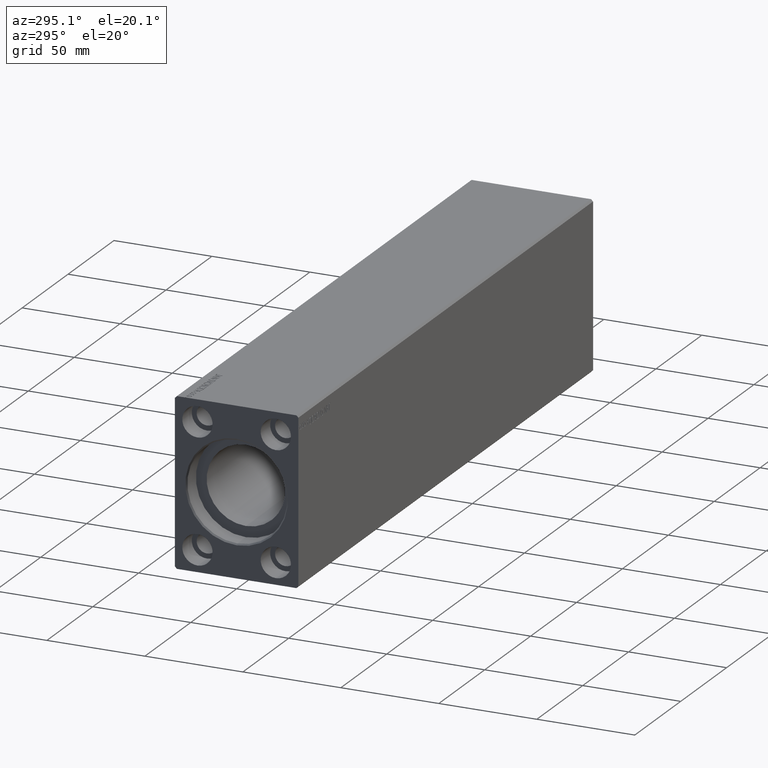
[diagram: clean part render]
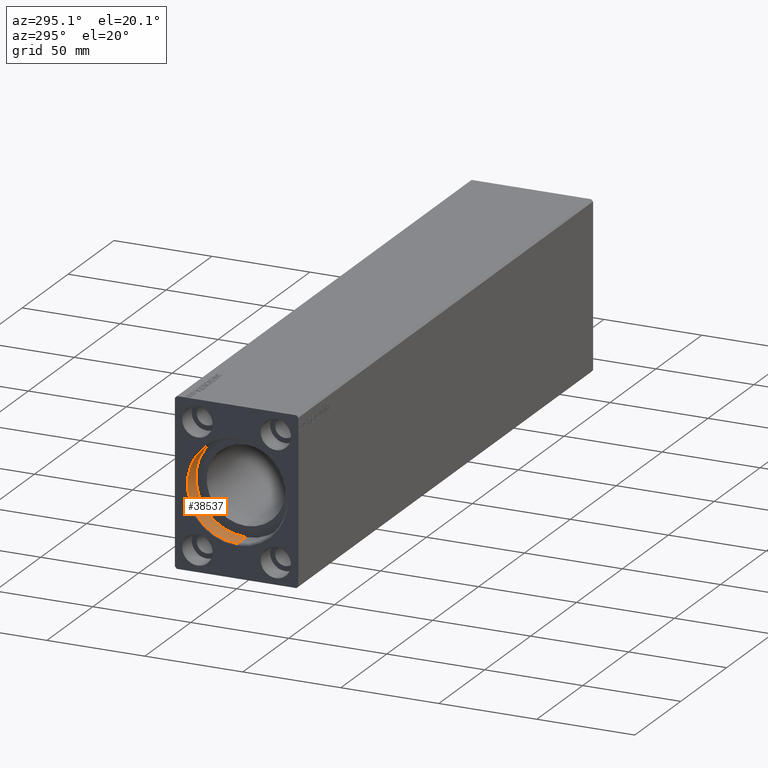
[diagram: same view with one face highlighted and labeled with its STEP entity id]
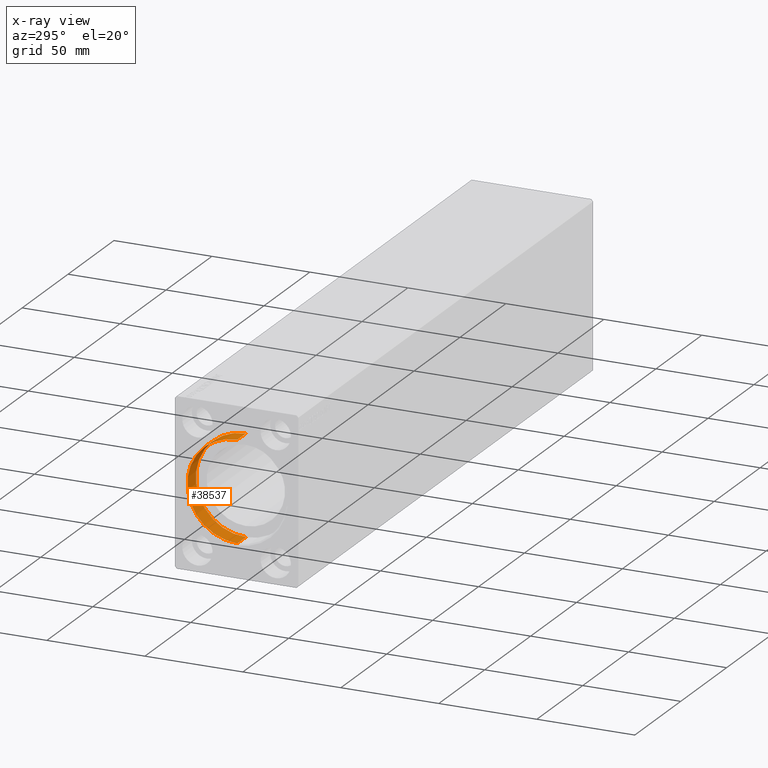
[diagram: x-ray of the same camera — body ghosted, the highlighted face saturated]
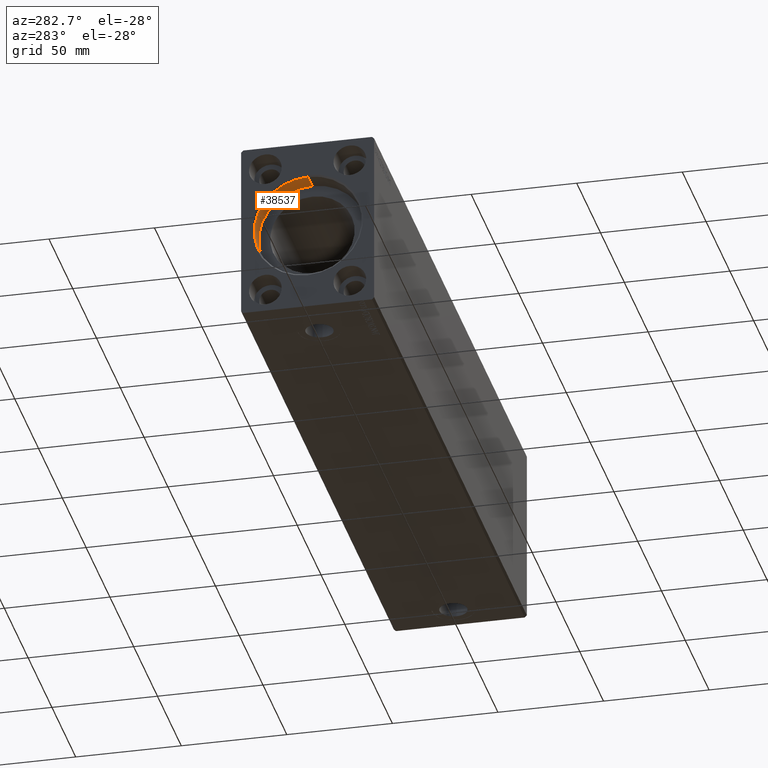
[diagram: same view with one face highlighted and labeled with its STEP entity id]
A machine part, auxiliary view. The second image highlights one B-rep face of the part: STEP entity #38537.
The next image is the same camera in x-ray: the body ghosted, the highlighted face saturated — about 0% of this face is hidden behind the body in this view.
A second angle (auxiliary view) of the same face is appended — the face is thin or edge-on in the first view.
In plain terms, the highlighted cylindrical surface (partial cylindrical patch) has radius 25.5 mm, axis along (-1, -0, -0).
Its self-contained STEP definition (entity closure, byte-faithful):
#1341 = DIRECTION ( 'NONE',  ( 0.000000000000000000, 0.000000000000000000, 1.000000000000000000 ) ) ;
#4644 = FACE_OUTER_BOUND ( 'NONE', #20493, .T. ) ;
#6790 = CARTESIAN_POINT ( 'NONE',  ( 0.6999999999999784173, 0.000000000000000000, 0.000000000000000000 ) ) ;
#8067 = DIRECTION ( 'NONE',  ( -1.000000000000000000, -0.000000000000000000, -0.000000000000000000 ) ) ;
#9501 = VERTEX_POINT ( 'NONE', #34988 ) ;
#10003 = EDGE_CURVE ( 'NONE', #9501, #14627, #29039, .T. ) ;
#10579 = ORIENTED_EDGE ( 'NONE', *, *, #10003, .F. ) ;
#12990 = CARTESIAN_POINT ( 'NONE',  ( 10.00000000000000000, 3.122849337825750222E-15, -25.50000000000000000 ) ) ;
#14627 = VERTEX_POINT ( 'NONE', #12990 ) ;
#15273 = ORIENTED_EDGE ( 'NONE', *, *, #24159, .T. ) ;
#16604 = CARTESIAN_POINT ( 'NONE',  ( 10.00000000000000000, 3.122849337825750222E-15, -25.50000000000000000 ) ) ;
#17841 = CARTESIAN_POINT ( 'NONE',  ( 10.00000000000000000, 0.000000000000000000, 0.000000000000000000 ) ) ;
#17910 = DIRECTION ( 'NONE',  ( 0.000000000000000000, 0.000000000000000000, 1.000000000000000000 ) ) ;
#19682 = CIRCLE ( 'NONE', #21728, 25.50000000000000000 ) ;
#19861 = DIRECTION ( 'NONE',  ( 0.000000000000000000, 0.000000000000000000, -1.000000000000000000 ) ) ;
#20493 = EDGE_LOOP ( 'NONE', ( #25503, #10579, #15273, #33673 ) ) ;
#20581 = VERTEX_POINT ( 'NONE', #25602 ) ;
#20656 = DIRECTION ( 'NONE',  ( -1.000000000000000000, 0.000000000000000000, 0.000000000000000000 ) ) ;
#21012 = VECTOR ( 'NONE', #39060, 1000.000000000000000 ) ;
#21728 = AXIS2_PLACEMENT_3D ( 'NONE', #6790, #35581, #19861 ) ;
#22512 = CARTESIAN_POINT ( 'NONE',  ( 10.00000000000000000, 0.000000000000000000, 25.50000000000000000 ) ) ;
#24159 = EDGE_CURVE ( 'NONE', #9501, #20581, #29383, .T. ) ;
#24432 = EDGE_CURVE ( 'NONE', #20581, #42455, #19682, .T. ) ;
#25503 = ORIENTED_EDGE ( 'NONE', *, *, #37788, .F. ) ;
#25602 = CARTESIAN_POINT ( 'NONE',  ( 0.6999999999999784173, 0.000000000000000000, 25.50000000000000000 ) ) ;
#26279 = CARTESIAN_POINT ( 'NONE',  ( 0.6999999999999784173, 3.122849337825750222E-15, -25.50000000000000000 ) ) ;
#27394 = CARTESIAN_POINT ( 'NONE',  ( 10.00000000000000000, 0.000000000000000000, 0.000000000000000000 ) ) ;
#27867 = AXIS2_PLACEMENT_3D ( 'NONE', #27394, #8067, #17910 ) ;
#28026 = CYLINDRICAL_SURFACE ( 'NONE', #27867, 25.50000000000000000 ) ;
#29039 = CIRCLE ( 'NONE', #34519, 25.50000000000000000 ) ;
#29082 = DIRECTION ( 'NONE',  ( -1.000000000000000000, -0.000000000000000000, -0.000000000000000000 ) ) ;
#29383 = LINE ( 'NONE', #22512, #21012 ) ;
#32738 = LINE ( 'NONE', #16604, #38163 ) ;
#33673 = ORIENTED_EDGE ( 'NONE', *, *, #24432, .T. ) ;
#34519 = AXIS2_PLACEMENT_3D ( 'NONE', #17841, #20656, #1341 ) ;
#34988 = CARTESIAN_POINT ( 'NONE',  ( 10.00000000000000000, 0.000000000000000000, 25.50000000000000000 ) ) ;
#35581 = DIRECTION ( 'NONE',  ( -1.000000000000000000, 0.000000000000000000, 0.000000000000000000 ) ) ;
#37788 = EDGE_CURVE ( 'NONE', #14627, #42455, #32738, .T. ) ;
#38163 = VECTOR ( 'NONE', #29082, 1000.000000000000000 ) ;
#38537 = ADVANCED_FACE ( 'NONE', ( #4644 ), #28026, .F. ) ;
#39060 = DIRECTION ( 'NONE',  ( -1.000000000000000000, -0.000000000000000000, -0.000000000000000000 ) ) ;
#42455 = VERTEX_POINT ( 'NONE', #26279 ) ;